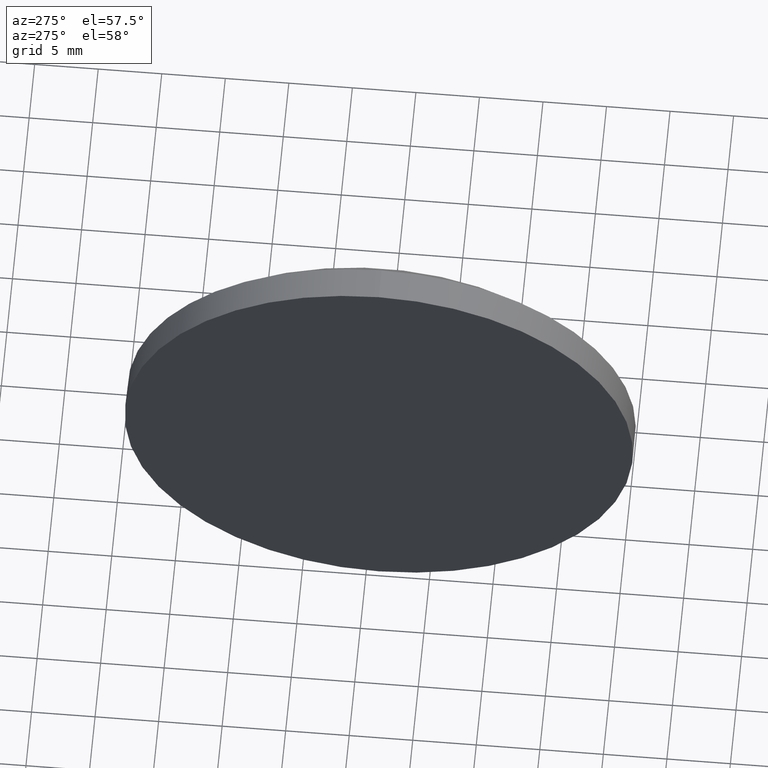
[diagram: clean part render]
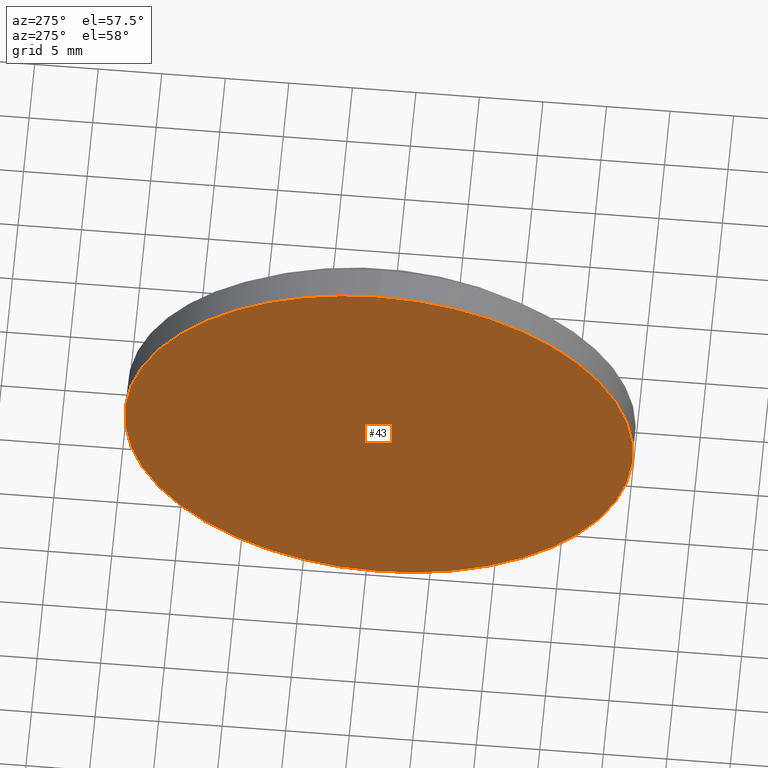
[diagram: same view with one face highlighted and labeled with its STEP entity id]
A machine part, auxiliary view. The second image highlights one B-rep face of the part: STEP entity #43.
In plain terms, the highlighted planar face has unit normal (1, 0, 0).
Its self-contained STEP definition (entity closure, byte-faithful):
#5 = DIRECTION ( 'NONE',  ( 0.0000000000000000000, 0.0000000000000000000, 1.000000000000000000 ) ) ;
#17 = EDGE_CURVE ( 'NONE', #117, #186, #124, .T. ) ;
#31 = CARTESIAN_POINT ( 'NONE',  ( 329.8594795055551000, -61.02737710045642000, 0.0000000000000000000 ) ) ;
#40 = CARTESIAN_POINT ( 'NONE',  ( 329.8594795055551000, -61.02737710045642000, 20.00000000000000400 ) ) ;
#41 = ORIENTED_EDGE ( 'NONE', *, *, #17, .T. ) ;
#43 = ADVANCED_FACE ( 'NONE', ( #60 ), #177, .F. ) ;
#49 = AXIS2_PLACEMENT_3D ( 'NONE', #68, #152, #57 ) ;
#57 = DIRECTION ( 'NONE',  ( 0.0000000000000000000, 0.0000000000000000000, -1.000000000000000000 ) ) ;
#59 = AXIS2_PLACEMENT_3D ( 'NONE', #31, #131, #90 ) ;
#60 = FACE_OUTER_BOUND ( 'NONE', #70, .T. ) ;
#68 = CARTESIAN_POINT ( 'NONE',  ( 329.8594795055551000, -61.02737710045642000, 0.0000000000000000000 ) ) ;
#70 = EDGE_LOOP ( 'NONE', ( #154, #41 ) ) ;
#90 = DIRECTION ( 'NONE',  ( 0.0000000000000000000, 0.0000000000000000000, 1.000000000000000000 ) ) ;
#93 = CARTESIAN_POINT ( 'NONE',  ( 329.8594795055551000, -61.02737710045642000, -20.00000000000000400 ) ) ;
#98 = CIRCLE ( 'NONE', #99, 20.00000000000000400 ) ;
#99 = AXIS2_PLACEMENT_3D ( 'NONE', #166, #178, #5 ) ;
#117 = VERTEX_POINT ( 'NONE', #93 ) ;
#124 = CIRCLE ( 'NONE', #59, 20.00000000000000400 ) ;
#131 = DIRECTION ( 'NONE',  ( -1.000000000000000000, -0.0000000000000000000, -0.0000000000000000000 ) ) ;
#152 = DIRECTION ( 'NONE',  ( 1.000000000000000000, 0.0000000000000000000, 0.0000000000000000000 ) ) ;
#154 = ORIENTED_EDGE ( 'NONE', *, *, #172, .T. ) ;
#166 = CARTESIAN_POINT ( 'NONE',  ( 329.8594795055551000, -61.02737710045642000, 0.0000000000000000000 ) ) ;
#172 = EDGE_CURVE ( 'NONE', #186, #117, #98, .T. ) ;
#177 = PLANE ( 'NONE',  #49 ) ;
#178 = DIRECTION ( 'NONE',  ( -1.000000000000000000, -0.0000000000000000000, -0.0000000000000000000 ) ) ;
#186 = VERTEX_POINT ( 'NONE', #40 ) ;